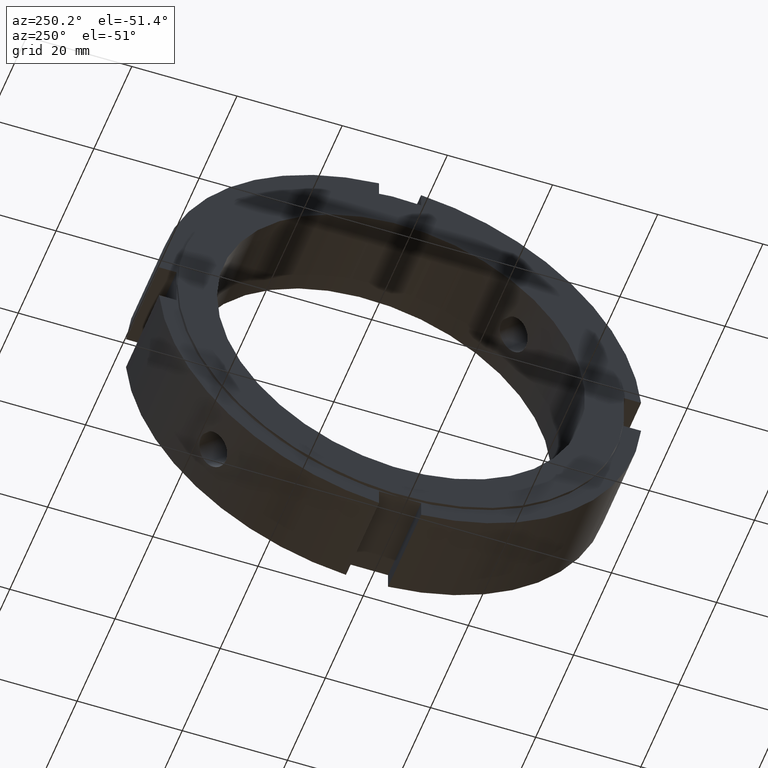
[diagram: clean part render]
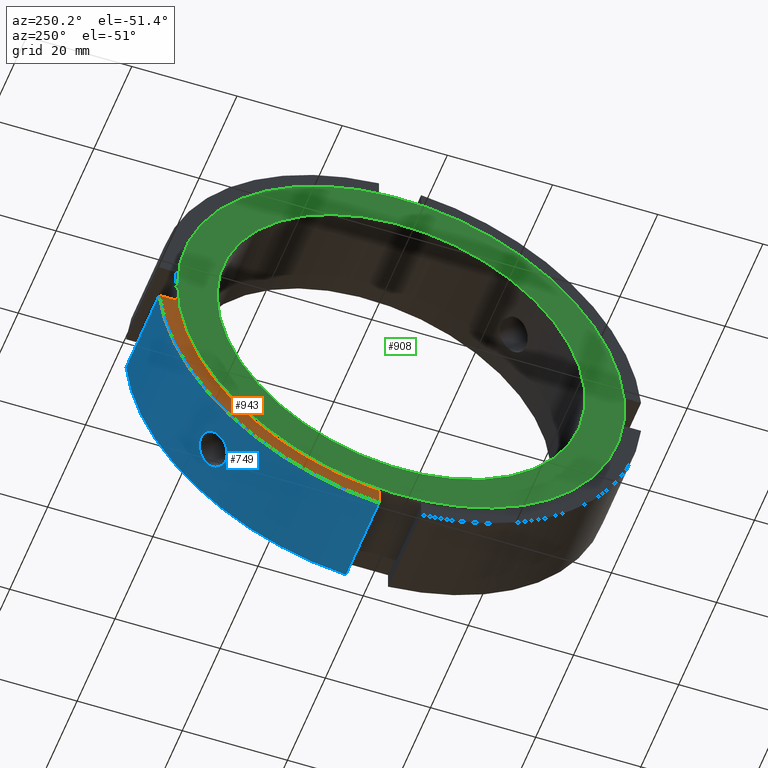
[diagram: same view with three faces highlighted in distinct colors, each labeled with its STEP entity id]
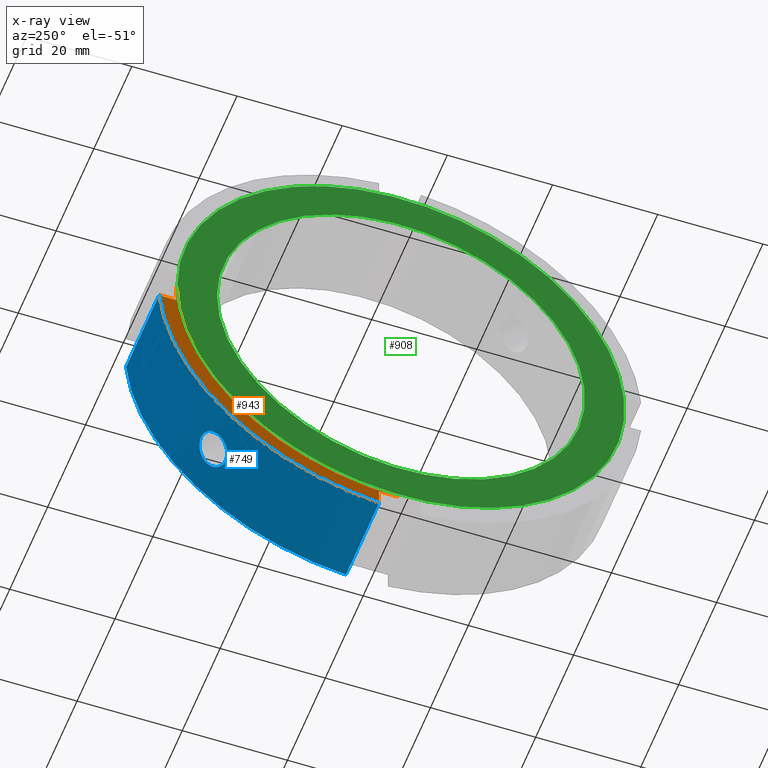
[diagram: x-ray of the same camera — body ghosted, the three highlighted faces saturated]
A machine part, auxiliary view with three faces highlighted in distinct colors.
The next image is the same camera in x-ray (body ghosted, the three faces saturated) — at least one of them is partly hidden behind the body in this view.
Their STEP definitions:

[orange] entity #943 — the highlighted planar face has unit normal (-1, 0, 0).
#289=CARTESIAN_POINT('',(0.499999999999989,3.999999999999990,-45.825756949558411));
#290=VERTEX_POINT('',#289);
#291=CARTESIAN_POINT('',(0.499999999999989,3.999999999999990,-42.500000000000000));
#292=VERTEX_POINT('',#291);
#293=CARTESIAN_POINT('',(0.499999999999989,3.999999999999986,-45.825756949558411));
#294=DIRECTION('',(0.0,0.0,1.0));
#295=VECTOR('',#294,3.325756949558411);
#296=LINE('',#293,#295);
#297=EDGE_CURVE('',#290,#292,#296,.T.);
#329=CARTESIAN_POINT('',(0.499999999999989,-7.771561E-015,-42.500000000000000));
#330=VERTEX_POINT('',#329);
#331=CARTESIAN_POINT('',(0.499999999999989,3.999999999999993,-42.499999999999993));
#332=DIRECTION('',(0.0,-1.0,0.0));
#333=VECTOR('',#332,4.0);
#334=LINE('',#331,#333);
#335=EDGE_CURVE('',#292,#330,#334,.T.);
#598=CARTESIAN_POINT('',(0.499999999999989,42.500000000000000,0.0));
#599=VERTEX_POINT('',#598);
#720=CARTESIAN_POINT('',(0.499999999999989,45.825756949558411,-3.999999999999998));
#721=VERTEX_POINT('',#720);
#722=CARTESIAN_POINT('',(0.499999999999989,0.0,0.0));
#723=DIRECTION('',(1.0,0.0,0.0));
#724=DIRECTION('',(0.0,1.0,0.0));
#725=AXIS2_PLACEMENT_3D('',#722,#723,#724);
#726=CIRCLE('',#725,46.000000000000007);
#727=EDGE_CURVE('',#290,#721,#726,.T.);
#827=CARTESIAN_POINT('',(0.499999999999989,42.500000000000000,-3.999999999999998));
#828=VERTEX_POINT('',#827);
#829=CARTESIAN_POINT('',(0.499999999999989,42.500000000000000,-3.999999999999998));
#830=DIRECTION('',(0.0,1.0,0.0));
#831=VECTOR('',#830,3.325756949558404);
#832=LINE('',#829,#831);
#833=EDGE_CURVE('',#828,#721,#832,.T.);
#868=CARTESIAN_POINT('',(0.499999999999989,42.500000000000000,0.0));
#869=DIRECTION('',(0.0,0.0,-1.0));
#870=VECTOR('',#869,3.999999999999997);
#871=LINE('',#868,#870);
#872=EDGE_CURVE('',#599,#828,#871,.T.);
#915=CARTESIAN_POINT('',(0.499999999999989,0.0,0.0));
#916=DIRECTION('',(1.0,0.0,0.0));
#917=DIRECTION('',(0.0,1.0,0.0));
#918=AXIS2_PLACEMENT_3D('',#915,#916,#917);
#919=CIRCLE('',#918,42.500000000000000);
#920=EDGE_CURVE('',#330,#599,#919,.T.);
#930=CARTESIAN_POINT('',(0.499999999999989,44.250000000000007,0.0));
#931=DIRECTION('',(-1.0,0.0,0.0));
#932=DIRECTION('',(0.0,0.0,1.0));
#933=AXIS2_PLACEMENT_3D('',#930,#931,#932);
#934=PLANE('',#933);
#935=ORIENTED_EDGE('',*,*,#335,.T.);
#936=ORIENTED_EDGE('',*,*,#920,.T.);
#937=ORIENTED_EDGE('',*,*,#872,.T.);
#938=ORIENTED_EDGE('',*,*,#833,.T.);
#939=ORIENTED_EDGE('',*,*,#727,.F.);
#940=ORIENTED_EDGE('',*,*,#297,.T.);
#941=EDGE_LOOP('',(#935,#936,#937,#938,#939,#940));
#942=FACE_OUTER_BOUND('',#941,.T.);
#943=ADVANCED_FACE('',(#942),#934,.T.);

[blue] entity #749 — the highlighted cylindrical surface (partial cylindrical patch) has radius 46 mm, axis along (1, 0, 0).
#161=CARTESIAN_POINT('',(8.999999999999993,30.091835209636351,-34.791973984183329));
#162=VERTEX_POINT('',#161);
#163=CARTESIAN_POINT('',(8.999999999999993,30.091835209636347,-34.791973984183336));
#164=CARTESIAN_POINT('',(9.417462330810810,30.091835209636347,-34.791973984183336));
#165=CARTESIAN_POINT('',(9.862650979435127,30.155293852818378,-34.737402739272063));
#166=CARTESIAN_POINT('',(10.681449563764039,30.411205416545076,-34.513584013655830));
#167=CARTESIAN_POINT('',(11.055071871078223,30.603420608371302,-34.344110096641003));
#168=CARTESIAN_POINT('',(11.645066631085079,31.041951333837964,-33.948262230776905));
#169=CARTESIAN_POINT('',(11.900819662495421,31.317499961915907,-33.695428953314803));
#170=CARTESIAN_POINT('',(12.240040367647243,31.912495040745831,-33.132467407137639));
#171=CARTESIAN_POINT('',(12.323499999999994,32.231721762136715,-32.822102107025650));
#172=CARTESIAN_POINT('',(12.323499999999994,32.822102107025650,-32.231721762136722));
#173=CARTESIAN_POINT('',(12.240040367647239,33.132467407137639,-31.912495040745831));
#174=CARTESIAN_POINT('',(11.900819662495421,33.695428953314803,-31.317499961915903));
#175=CARTESIAN_POINT('',(11.645066631085081,33.948262230776905,-31.041951333837972));
#176=CARTESIAN_POINT('',(11.055071871078223,34.344110096641003,-30.603420608371309));
#177=CARTESIAN_POINT('',(10.681449563764037,34.513584013655830,-30.411205416545076));
#178=CARTESIAN_POINT('',(9.862650979435122,34.737402739272063,-30.155293852818382));
#179=CARTESIAN_POINT('',(9.417462330810810,34.791973984183322,-30.091835209636354));
#180=CARTESIAN_POINT('',(8.582537669189176,34.791973984183322,-30.091835209636354));
#181=CARTESIAN_POINT('',(8.137349020564862,34.737402739272056,-30.155293852818389));
#182=CARTESIAN_POINT('',(7.318550436235950,34.513584013655823,-30.411205416545087));
#183=CARTESIAN_POINT('',(6.944928128921760,34.344110096641003,-30.603420608371309));
#184=CARTESIAN_POINT('',(6.354933368914903,33.948262230776905,-31.041951333837972));
#185=CARTESIAN_POINT('',(6.099180337504566,33.695428953314803,-31.317499961915907));
#186=CARTESIAN_POINT('',(5.759959632352746,33.132467407137639,-31.912495040745835));
#187=CARTESIAN_POINT('',(5.676499999999994,32.822102107025650,-32.231721762136722));
#188=CARTESIAN_POINT('',(5.676499999999994,32.231721762136715,-32.822102107025657));
#189=CARTESIAN_POINT('',(5.759959632352748,31.912495040745817,-33.132467407137639));
#190=CARTESIAN_POINT('',(6.099180337504579,31.317499961915889,-33.695428953314817));
#191=CARTESIAN_POINT('',(6.354933368914902,31.041951333837950,-33.948262230776926));
#192=CARTESIAN_POINT('',(6.944928128921761,30.603420608371287,-34.344110096641025));
#193=CARTESIAN_POINT('',(7.318550436235954,30.411205416545059,-34.513584013655830));
#194=CARTESIAN_POINT('',(8.137349020564862,30.155293852818371,-34.737402739272063));
#195=CARTESIAN_POINT('',(8.582537669189177,30.091835209636347,-34.791973984183336));
#196=CARTESIAN_POINT('',(8.999999999999993,30.091835209636347,-34.791973984183336));
#197=B_SPLINE_CURVE_WITH_KNOTS('',3,(#163,#164,#165,#166,#167,#168,#169,#170,#171,#172,#173,#174,#175,#176,#177,#178,#179,#180,#181,#182,#183,#184,#185,#186,#187,#188,#189,#190,#191,#192,#193,#194,#195,#196),.UNSPECIFIED.,.T.,.U.,(4,2,2,2,2,2,2,2,2,2,2,2,2,2,2,2,4),(0.0,0.125238699243245,0.250477398486490,0.375715982091555,0.500954565696620,0.626193149301685,0.751431732906751,0.876670432149995,1.001909131393240,1.127147830636485,1.252386529879730,1.377625113484795,1.502863697089860,1.628102280694927,1.753340864299993,1.878579563543238,2.003818262786482),.UNSPECIFIED.);
#198=EDGE_CURVE('',#162,#162,#197,.T.);
#289=CARTESIAN_POINT('',(0.499999999999989,3.999999999999990,-45.825756949558411));
#290=VERTEX_POINT('',#289);
#299=CARTESIAN_POINT('',(17.999999999999993,3.999999999999990,-45.825756949558397));
#300=VERTEX_POINT('',#299);
#301=CARTESIAN_POINT('',(17.999999999999993,3.999999999999990,-45.825756949558397));
#302=DIRECTION('',(-1.0,0.0,0.0));
#303=VECTOR('',#302,17.500000000000004);
#304=LINE('',#301,#303);
#305=EDGE_CURVE('',#300,#290,#304,.T.);
#714=CARTESIAN_POINT('',(9.249999999999989,0.0,0.0));
#715=DIRECTION('',(1.0,0.0,0.0));
#716=DIRECTION('',(0.0,1.0,0.0));
#717=AXIS2_PLACEMENT_3D('',#714,#715,#716);
#718=CYLINDRICAL_SURFACE('',#717,46.0);
#719=ORIENTED_EDGE('',*,*,#305,.T.);
#720=CARTESIAN_POINT('',(0.499999999999989,45.825756949558411,-3.999999999999998));
#721=VERTEX_POINT('',#720);
#722=CARTESIAN_POINT('',(0.499999999999989,0.0,0.0));
#723=DIRECTION('',(1.0,0.0,0.0));
#724=DIRECTION('',(0.0,1.0,0.0));
#725=AXIS2_PLACEMENT_3D('',#722,#723,#724);
#726=CIRCLE('',#725,46.000000000000007);
#727=EDGE_CURVE('',#290,#721,#726,.T.);
#728=ORIENTED_EDGE('',*,*,#727,.T.);
#729=CARTESIAN_POINT('',(17.999999999999993,45.825756949558397,-3.999999999999998));
#730=VERTEX_POINT('',#729);
#731=CARTESIAN_POINT('',(0.499999999999989,45.825756949558397,-3.999999999999998));
#732=DIRECTION('',(1.0,0.0,0.0));
#733=VECTOR('',#732,17.500000000000004);
#734=LINE('',#731,#733);
#735=EDGE_CURVE('',#721,#730,#734,.T.);
#736=ORIENTED_EDGE('',*,*,#735,.T.);
#737=CARTESIAN_POINT('',(17.999999999999989,0.0,0.0));
#738=DIRECTION('',(1.0,0.0,0.0));
#739=DIRECTION('',(0.0,1.0,0.0));
#740=AXIS2_PLACEMENT_3D('',#737,#738,#739);
#741=CIRCLE('',#740,46.0);
#742=EDGE_CURVE('',#300,#730,#741,.T.);
#743=ORIENTED_EDGE('',*,*,#742,.F.);
#744=EDGE_LOOP('',(#719,#728,#736,#743));
#745=FACE_OUTER_BOUND('',#744,.T.);
#746=ORIENTED_EDGE('',*,*,#198,.T.);
#747=EDGE_LOOP('',(#746));
#748=FACE_BOUND('',#747,.T.);
#749=ADVANCED_FACE('',(#745,#748),#718,.T.);

[green] entity #908 — the highlighted planar face has unit normal (-1, 0, 0).
#881=CARTESIAN_POINT('',(-1.157218E-014,38.750000000000000,0.0));
#882=DIRECTION('',(-1.0,0.0,0.0));
#883=DIRECTION('',(0.0,0.0,1.0));
#884=AXIS2_PLACEMENT_3D('',#881,#882,#883);
#885=PLANE('',#884);
#886=CARTESIAN_POINT('',(-1.332268E-014,42.500000000000000,0.0));
#887=VERTEX_POINT('',#886);
#888=CARTESIAN_POINT('',(-1.332268E-014,0.0,0.0));
#889=DIRECTION('',(1.0,0.0,0.0));
#890=DIRECTION('',(0.0,1.0,0.0));
#891=AXIS2_PLACEMENT_3D('',#888,#889,#890);
#892=CIRCLE('',#891,42.500000000000000);
#893=EDGE_CURVE('',#887,#887,#892,.T.);
#894=ORIENTED_EDGE('',*,*,#893,.F.);
#895=EDGE_LOOP('',(#894));
#896=FACE_OUTER_BOUND('',#895,.T.);
#897=CARTESIAN_POINT('',(-9.821683E-015,35.0,0.0));
#898=VERTEX_POINT('',#897);
#899=CARTESIAN_POINT('',(-9.822872E-015,0.0,0.0));
#900=DIRECTION('',(1.0,0.0,0.0));
#901=DIRECTION('',(0.0,1.0,0.0));
#902=AXIS2_PLACEMENT_3D('',#899,#900,#901);
#903=CIRCLE('',#902,35.0);
#904=EDGE_CURVE('',#898,#898,#903,.T.);
#905=ORIENTED_EDGE('',*,*,#904,.T.);
#906=EDGE_LOOP('',(#905));
#907=FACE_BOUND('',#906,.T.);
#908=ADVANCED_FACE('',(#896,#907),#885,.T.);